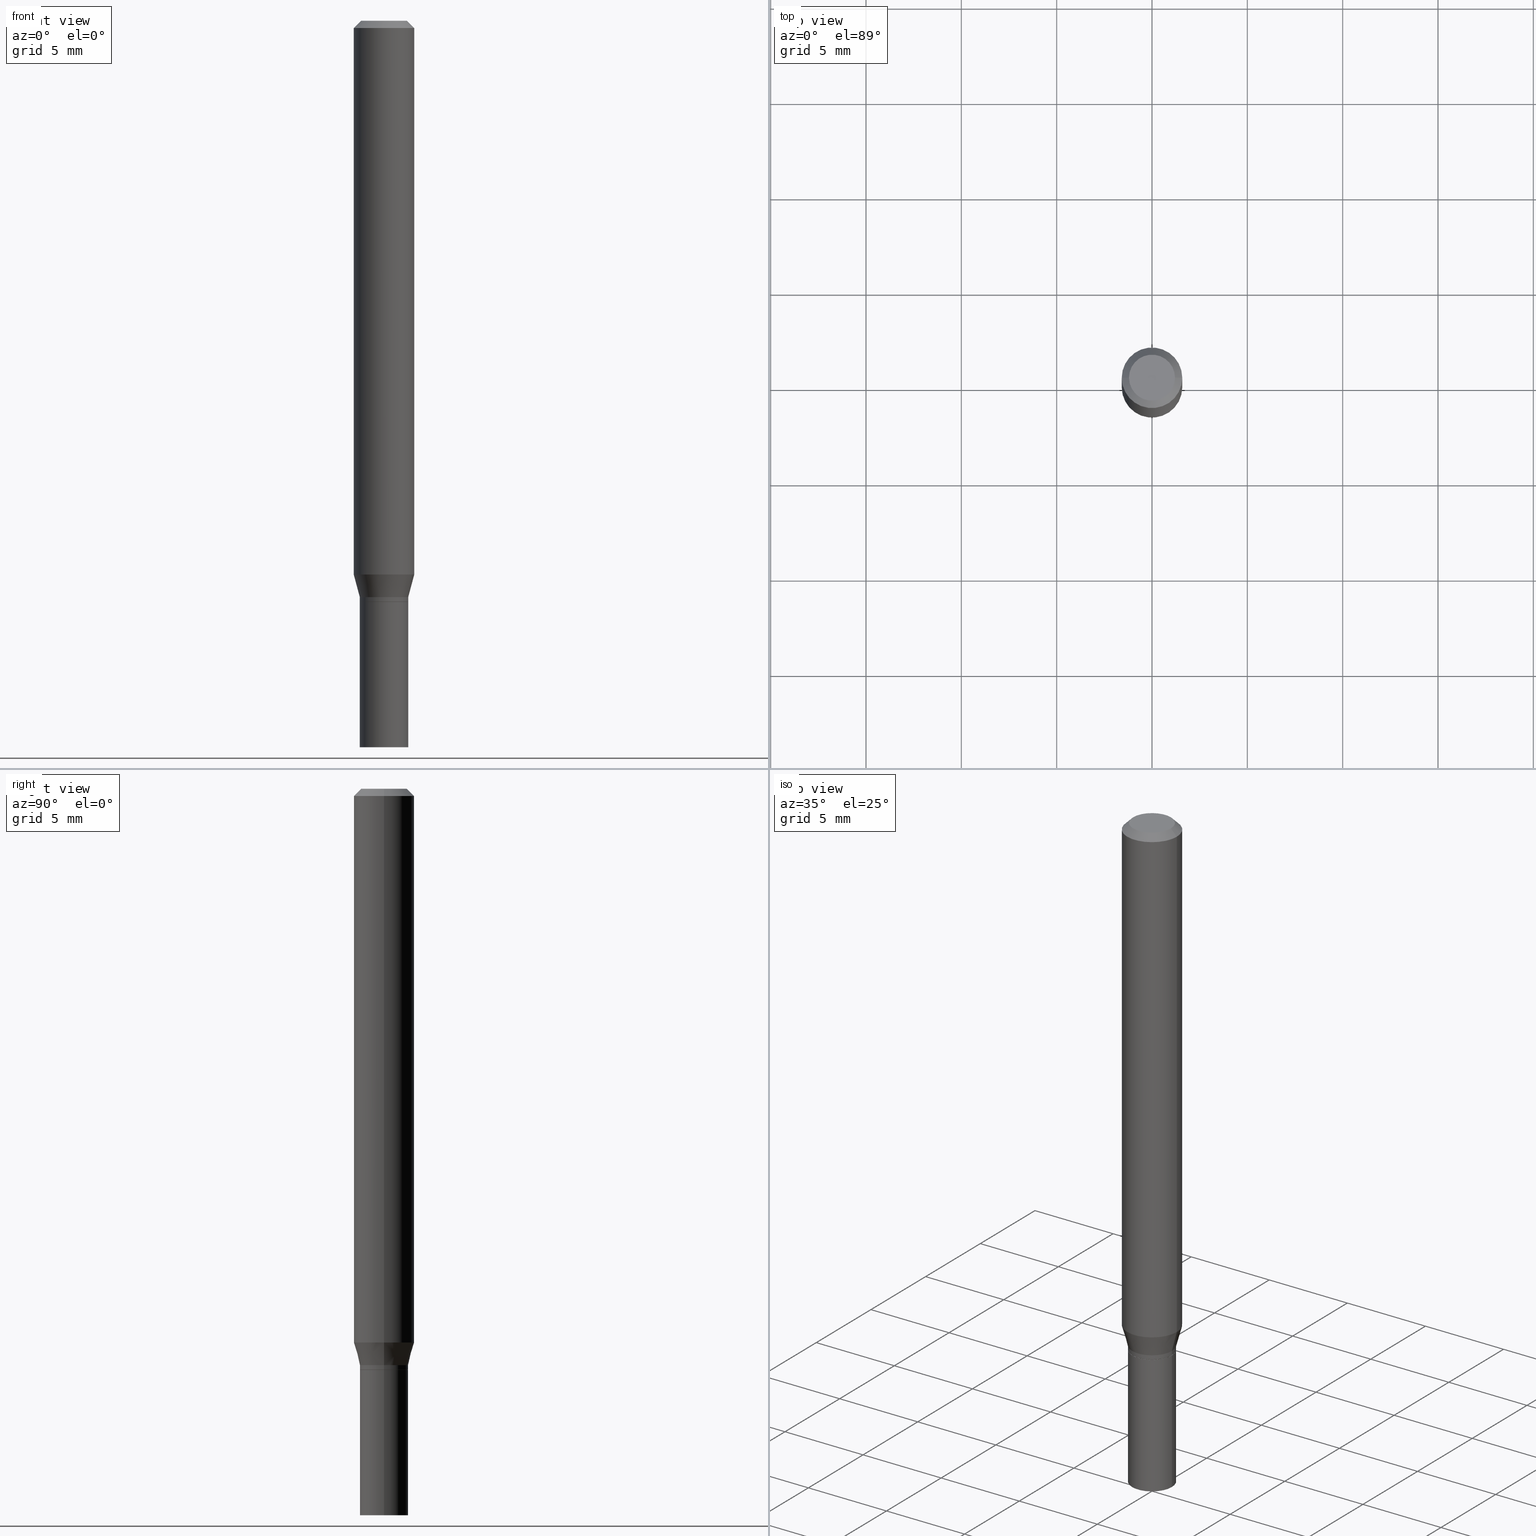
[diagram: canonical four-view strip — front | top / right | iso, engineering-drawing reading convention]
A machine part, canonical four-view strip (front | top / right | iso — engineering-drawing reading convention). The complete STEP part file that produces these views, byte-faithful:
ISO-10303-21;
HEADER;
FILE_DESCRIPTION (( 'STEP AP203' ),
    '1' );
FILE_NAME ('00508.STEP',
    '2024-03-19T21:26:42',
    ( '' ),
    ( '' ),
    'SwSTEP 2.0',
    'SolidWorks 2023',
    '' );
FILE_SCHEMA (( 'CONFIG_CONTROL_DESIGN' ));
ENDSEC;

DATA;
#1 = ORIENTED_EDGE ( 'NONE', *, *, #311, .T. ) ;
#2 = CIRCLE ( 'NONE', #382, 0.04950000000000000233 ) ;
#3 = VECTOR ( 'NONE', #71, 39.37007874015748854 ) ;
#4 = PRODUCT_DEFINITION ( 'UNKNOWN', '', #101, #205 ) ;
#5 = LINE ( 'NONE', #403, #201 ) ;
#6 = DIRECTION ( 'NONE',  ( -2.445468806185136597E-29, 3.491481338843145583E-15, 1.000000000000000000 ) ) ;
#7 = FACE_OUTER_BOUND ( 'NONE', #132, .T. ) ;
#8 = CARTESIAN_POINT ( 'NONE',  ( -2.107530995056288845E-45, 3.008995707351289501E-31, 8.618106228653878303E-17 ) ) ;
#9 = DIRECTION ( 'NONE',  ( -2.445468806185136597E-29, 3.491481338843145583E-15, 1.000000000000000000 ) ) ;
#10 = CIRCLE ( 'NONE', #130, 0.05000000000000006523 ) ;
#11 = ORIENTED_EDGE ( 'NONE', *, *, #244, .T. ) ;
#12 = COORDINATED_UNIVERSAL_TIME_OFFSET ( 5, 0, .BEHIND. ) ;
#13 = EDGE_CURVE ( 'NONE', #392, #26, #98, .T. ) ;
#14 = CONICAL_SURFACE ( 'NONE', #443, 0.05000000000000006523, 0.2617993877991506846 ) ;
#15 = PERSON_AND_ORGANIZATION_ROLE ( 'creator' ) ;
#16 = ORIENTED_EDGE ( 'NONE', *, *, #227, .F. ) ;
#17 = CC_DESIGN_PERSON_AND_ORGANIZATION_ASSIGNMENT ( #243, #283, ( #101 ) ) ;
#18 = EDGE_CURVE ( 'NONE', #168, #96, #407, .T. ) ;
#19 = CIRCLE ( 'NONE', #240, 0.05000000000000006523 ) ;
#20 = ORIENTED_EDGE ( 'NONE', *, *, #326, .F. ) ;
#21 = ORIENTED_EDGE ( 'NONE', *, *, #288, .F. ) ;
#22 =( NAMED_UNIT ( * ) SI_UNIT ( $, .STERADIAN. ) SOLID_ANGLE_UNIT ( ) );
#23 = ORIENTED_EDGE ( 'NONE', *, *, #92, .F. ) ;
#24 = CARTESIAN_POINT ( 'NONE',  ( 0.000000000000000000, 0.000000000000000000, 0.000000000000000000 ) ) ;
#25 = DIRECTION ( 'NONE',  ( -0.7071067811865656694, 7.493145998870420424E-15, 0.7071067811865294761 ) ) ;
#26 = VERTEX_POINT ( 'NONE', #230 ) ;
#27 = DIRECTION ( 'NONE',  ( -1.000000000000000000, 6.982962677686265922E-15, -4.876176775795935793E-29 ) ) ;
#28 = DIRECTION ( 'NONE',  ( 1.000000000000000000, -6.982962677686266711E-15, 4.876176775795935793E-29 ) ) ;
#29 = CARTESIAN_POINT ( 'NONE',  ( -0.05000000000000006523, 3.552713678800505564E-16, -2.459467545127455764E-30 ) ) ;
#30 = CARTESIAN_POINT ( 'NONE',  ( 2.910107879360313156E-29, -4.154862793223344154E-15, -1.190000000000000169 ) ) ;
#31 = DIRECTION ( 'NONE',  ( 1.000000000000000000, -6.982962677686265133E-15, 0.000000000000000000 ) ) ;
#32 = DIRECTION ( 'NONE',  ( 1.000000000000000000, -6.982962677686270655E-15, 0.000000000000000000 ) ) ;
#33 = EDGE_CURVE ( 'NONE', #134, #355, #357, .T. ) ;
#34 = DIRECTION ( 'NONE',  ( -2.445468806185136597E-29, 3.491481338843145583E-15, 1.000000000000000000 ) ) ;
#35 = CARTESIAN_POINT ( 'NONE',  ( -0.05000000000000000278, -4.358228439558196976E-15, -1.500000000000000222 ) ) ;
#36 = CARTESIAN_POINT ( 'NONE',  ( -0.05000000000000000278, 3.552713678800501127E-16, -2.459467545127453311E-30 ) ) ;
#37 = CIRCLE ( 'NONE', #352, 0.05000000000000006523 ) ;
#38 = PERSON_AND_ORGANIZATION ( #138, #274 ) ;
#39 = AXIS2_PLACEMENT_3D ( 'NONE', #185, #34, #214 ) ;
#40 = DIRECTION ( 'NONE',  ( -2.445468806185136597E-29, 3.491481338843145583E-15, 1.000000000000000000 ) ) ;
#41 = ORIENTED_EDGE ( 'NONE', *, *, #275, .F. ) ;
#42 = ORIENTED_EDGE ( 'NONE', *, *, #391, .F. ) ;
#43 = PRODUCT_DEFINITION_SHAPE ( 'NONE', 'NONE',  #4 ) ;
#44 = EDGE_CURVE ( 'NONE', #355, #107, #313, .T. ) ;
#45 = DIRECTION ( 'NONE',  ( -2.445468806185136877E-29, 3.491481338843145188E-15, 1.000000000000000000 ) ) ;
#46 = EDGE_LOOP ( 'NONE', ( #213, #300 ) ) ;
#47 = AXIS2_PLACEMENT_3D ( 'NONE', #439, #299, #76 ) ;
#48 = AXIS2_PLACEMENT_3D ( 'NONE', #248, #434, #27 ) ;
#49 = FACE_OUTER_BOUND ( 'NONE', #249, .T. ) ;
#50 = SECURITY_CLASSIFICATION_LEVEL ( 'unclassified' ) ;
#51 = EDGE_CURVE ( 'NONE', #140, #356, #397, .T. ) ;
#52 = AXIS2_PLACEMENT_3D ( 'NONE', #464, #344, #32 ) ;
#53 = VECTOR ( 'NONE', #143, 39.37007874015748143 ) ;
#54 = PERSON_AND_ORGANIZATION ( #138, #274 ) ;
#55 = MANIFOLD_SOLID_BREP ( 'Body-Move/Copy2[2]', #78 ) ;
#56 = ADVANCED_FACE ( 'NONE', ( #220 ), #432, .T. ) ;
#57 = EDGE_LOOP ( 'NONE', ( #297, #389, #223, #390 ) ) ;
#58 = EDGE_LOOP ( 'NONE', ( #387, #11, #61, #42 ) ) ;
#59 = AXIS2_PLACEMENT_3D ( 'NONE', #257, #259, #110 ) ;
#60 = ORIENTED_EDGE ( 'NONE', *, *, #18, .T. ) ;
#61 = ORIENTED_EDGE ( 'NONE', *, *, #51, .T. ) ;
#62 = CC_DESIGN_PERSON_AND_ORGANIZATION_ASSIGNMENT ( #415, #89, ( #101 ) ) ;
#63 = ADVANCED_FACE ( 'NONE', ( #191 ), #378, .T. ) ;
#64 = FACE_OUTER_BOUND ( 'NONE', #402, .T. ) ;
#65 = ORIENTED_EDGE ( 'NONE', *, *, #188, .F. ) ;
#66 = PRODUCT ( '00508', '00508', '', ( #239 ) ) ;
#67 = CARTESIAN_POINT ( 'NONE',  ( -0.04950000000000000233, -3.838058952410526294E-15, -1.200000000000000178 ) ) ;
#68 = DIRECTION ( 'NONE',  ( -2.445468806185136877E-29, 3.491481338843145188E-15, 1.000000000000000000 ) ) ;
#69 = VECTOR ( 'NONE', #367, 39.37007874015748143 ) ;
#70 = DIRECTION ( 'NONE',  ( 1.000000000000000000, -6.982962677686264344E-15, 0.000000000000000000 ) ) ;
#71 = DIRECTION ( 'NONE',  ( -0.7071067811865454633, 2.468850131082235761E-15, -0.7071067811865493491 ) ) ;
#72 = CARTESIAN_POINT ( 'NONE',  ( 0.05000000000000000278, -3.491481338843133848E-16, 2.438088387897968247E-30 ) ) ;
#73 = CARTESIAN_POINT ( 'NONE',  ( 0.04950000000000000233, -4.535434259157245343E-15, -1.200000000000000178 ) ) ;
#74 = CARTESIAN_POINT ( 'NONE',  ( 2.910107879360313156E-29, -4.154862793223344154E-15, -1.190000000000000169 ) ) ;
#75 = CARTESIAN_POINT ( 'NONE',  ( -0.04950000000000000233, -3.835409725236414304E-15, -1.200000000000000178 ) ) ;
#76 = DIRECTION ( 'NONE',  ( 1.000000000000000000, -6.982962677686265922E-15, 4.876176775795935793E-29 ) ) ;
#77 = ORIENTED_EDGE ( 'NONE', *, *, #33, .T. ) ;
#78 = CLOSED_SHELL ( 'NONE', ( #56, #301, #133, #256, #366, #119, #63, #183, #317, #211, #417, #409 ) ) ;
#79 = AXIS2_PLACEMENT_3D ( 'NONE', #272, #411, #277 ) ;
#80 = LOCAL_TIME ( 17, 26, 42.00000000000000000, #447 ) ;
#81 = EDGE_CURVE ( 'NONE', #392, #310, #233, .T. ) ;
#82 = DIRECTION ( 'NONE',  ( -2.445468806185136877E-29, 3.491481338843145188E-15, 1.000000000000000000 ) ) ;
#83 = DIRECTION ( 'NONE',  ( 1.000000000000000000, -6.982962677686264344E-15, 0.000000000000000000 ) ) ;
#84 = CARTESIAN_POINT ( 'NONE',  ( -2.107530995056288845E-45, 3.008995707351289501E-31, 8.618106228653878303E-17 ) ) ;
#85 = ORIENTED_EDGE ( 'NONE', *, *, #51, .F. ) ;
#86 = APPROVAL_DATE_TIME ( #280, #287 ) ;
#87 = CIRCLE ( 'NONE', #448, 0.06250000000000000000 ) ;
#88 = CIRCLE ( 'NONE', #286, 0.05000000000000000278 ) ;
#89 = PERSON_AND_ORGANIZATION_ROLE ( 'design_supplier' ) ;
#90 = DATE_TIME_ROLE ( 'creation_date' ) ;
#91 = COORDINATED_UNIVERSAL_TIME_OFFSET ( 5, 0, .BEHIND. ) ;
#92 = EDGE_CURVE ( 'NONE', #100, #363, #2, .T. ) ;
#93 = CLOSED_SHELL ( 'NONE', ( #458, #276, #200, #169 ) ) ;
#94 = LOCAL_TIME ( 17, 26, 42.00000000000000000, #171 ) ;
#95 = PERSON_AND_ORGANIZATION ( #138, #274 ) ;
#96 = VERTEX_POINT ( 'NONE', #268 ) ;
#97 = VERTEX_POINT ( 'NONE', #404 ) ;
#98 = CIRCLE ( 'NONE', #375, 0.05000000000000006523 ) ;
#99 = AXIS2_PLACEMENT_3D ( 'NONE', #142, #228, #261 ) ;
#100 = VERTEX_POINT ( 'NONE', #75 ) ;
#101 = PRODUCT_DEFINITION_FORMATION_WITH_SPECIFIED_SOURCE ( 'ANY', '', #66, .NOT_KNOWN. ) ;
#102 = EDGE_CURVE ( 'NONE', #134, #97, #373, .T. ) ;
#103 = APPLICATION_PROTOCOL_DEFINITION ( 'international standard', 'config_control_design', 1994, #245 ) ;
#104 = DIRECTION ( 'NONE',  ( -2.445468806185136597E-29, 3.491481338843145583E-15, 1.000000000000000000 ) ) ;
#105 = ORIENTED_EDGE ( 'NONE', *, *, #337, .T. ) ;
#106 = DIRECTION ( 'NONE',  ( 1.000000000000000000, -6.982962677686266711E-15, 0.000000000000000000 ) ) ;
#107 = VERTEX_POINT ( 'NONE', #194 ) ;
#108 = DIRECTION ( 'NONE',  ( 1.000000000000000000, -6.982962677686265133E-15, 0.000000000000000000 ) ) ;
#109 = EDGE_CURVE ( 'NONE', #395, #456, #281, .T. ) ;
#110 = DIRECTION ( 'NONE',  ( 1.000000000000000000, -6.982962677686264344E-15, 0.000000000000000000 ) ) ;
#111 = EDGE_LOOP ( 'NONE', ( #349, #60, #454, #85 ) ) ;
#112 = AXIS2_PLACEMENT_3D ( 'NONE', #399, #116, #70 ) ;
#113 = DIRECTION ( 'NONE',  ( 0.2588190451025219607, 1.565188264969617432E-15, 0.9659258262890679791 ) ) ;
#114 = LINE ( 'NONE', #202, #318 ) ;
#115 = DIRECTION ( 'NONE',  ( 1.000000000000000000, -6.982962677686264344E-15, 0.000000000000000000 ) ) ;
#116 = DIRECTION ( 'NONE',  ( -2.445468806185136597E-29, 3.491481338843145583E-15, 1.000000000000000000 ) ) ;
#117 = CARTESIAN_POINT ( 'NONE',  ( 3.668203209277705088E-31, -5.237222008264718399E-17, -0.01499999999999999944 ) ) ;
#118 = DIRECTION ( 'NONE',  ( 1.000000000000000000, -6.982962677686265133E-15, 0.000000000000000000 ) ) ;
#119 = ADVANCED_FACE ( 'NONE', ( #335 ), #166, .T. ) ;
#120 = FACE_OUTER_BOUND ( 'NONE', #136, .T. ) ;
#121 = ORIENTED_EDGE ( 'NONE', *, *, #129, .T. ) ;
#122 = AXIS2_PLACEMENT_3D ( 'NONE', #84, #412, #444 ) ;
#123 = CARTESIAN_POINT ( 'NONE',  ( 0.05000000000000000278, -5.586370142149032301E-15, -1.500000000000000222 ) ) ;
#124 = DATE_AND_TIME ( #204, #94 ) ;
#125 = CC_DESIGN_APPROVAL ( #408, ( #330 ) ) ;
#126 = DATE_AND_TIME ( #316, #383 ) ;
#127 = PLANE ( 'NONE',  #48 ) ;
#128 = PERSON_AND_ORGANIZATION ( #138, #274 ) ;
#129 = EDGE_CURVE ( 'NONE', #355, #134, #246, .T. ) ;
#130 = AXIS2_PLACEMENT_3D ( 'NONE', #74, #104, #31 ) ;
#131 = ORIENTED_EDGE ( 'NONE', *, *, #129, .F. ) ;
#132 = EDGE_LOOP ( 'NONE', ( #121, #184, #16, #323 ) ) ;
#133 = ADVANCED_FACE ( 'NONE', ( #120 ), #285, .T. ) ;
#134 = VERTEX_POINT ( 'NONE', #235 ) ;
#135 = CONICAL_SURFACE ( 'NONE', #160, 0.04950000000000000233, 0.7853981633974739252 ) ;
#136 = EDGE_LOOP ( 'NONE', ( #360, #253, #174, #41 ) ) ;
#137 = FACE_OUTER_BOUND ( 'NONE', #111, .T. ) ;
#138 = PERSON ( 'UNSPECIFIED', 'UNSPECIFIED', 'UNSPECIFIED', ('UNSPECIFIED'), ('UNSPECIFIED'), ('UNSPECIFIED') ) ;
#139 = LINE ( 'NONE', #67, #343 ) ;
#140 = VERTEX_POINT ( 'NONE', #123 ) ;
#141 = EDGE_CURVE ( 'NONE', #456, #395, #328, .T. ) ;
#142 = CARTESIAN_POINT ( 'NONE',  ( 3.668203209277704895E-29, -5.237222008264718177E-15, -1.500000000000000222 ) ) ;
#143 = DIRECTION ( 'NONE',  ( -0.2588190451025219607, 5.211531920934553408E-15, 0.9659258262890679791 ) ) ;
#144 = CARTESIAN_POINT ( 'NONE',  ( 2.910107879360313156E-29, -4.154862793223344154E-15, -1.190000000000000169 ) ) ;
#145 =( NAMED_UNIT ( * ) PLANE_ANGLE_UNIT ( ) SI_UNIT ( $, .RADIAN. ) );
#146 = DIRECTION ( 'NONE',  ( -2.445468806185136877E-29, 3.491481338843145188E-15, 1.000000000000000000 ) ) ;
#147 = DIRECTION ( 'NONE',  ( 1.000000000000000000, -6.982962677686266711E-15, 4.876176775795935793E-29 ) ) ;
#148 = AXIS2_PLACEMENT_3D ( 'NONE', #406, #362, #307 ) ;
#149 = LOCAL_TIME ( 17, 26, 42.00000000000000000, #241 ) ;
#150 = DIRECTION ( 'NONE',  ( 0.7071067811865656694, -2.468850131082446387E-15, 0.7071067811865294761 ) ) ;
#151 = CYLINDRICAL_SURFACE ( 'NONE', #148, 0.05000000000000000278 ) ;
#152 = ORIENTED_EDGE ( 'NONE', *, *, #141, .T. ) ;
#153 = DIRECTION ( 'NONE',  ( -2.445468806185136597E-29, 3.491481338843145583E-15, 1.000000000000000000 ) ) ;
#154 = APPROVAL ( #354, 'UNSPECIFIED' ) ;
#155 = EDGE_CURVE ( 'NONE', #310, #291, #10, .T. ) ;
#156 = CARTESIAN_POINT ( 'NONE',  ( 2.796025206447717260E-29, -3.991982971345330579E-15, -1.143349364905389631 ) ) ;
#157 = DIRECTION ( 'NONE',  ( -2.445468806185136597E-29, 3.491481338843145583E-15, 1.000000000000000000 ) ) ;
#158 = DIRECTION ( 'NONE',  ( 1.000000000000000000, -6.982962677686266711E-15, 4.876176775795935232E-29 ) ) ;
#159 = VECTOR ( 'NONE', #45, 39.37007874015748143 ) ;
#160 = AXIS2_PLACEMENT_3D ( 'NONE', #379, #157, #83 ) ;
#161 = CC_DESIGN_DATE_AND_TIME_ASSIGNMENT ( #284, #90, ( #4 ) ) ;
#162 = EDGE_CURVE ( 'NONE', #363, #100, #398, .T. ) ;
#163 = DIRECTION ( 'NONE',  ( 0.7071067811865454633, -7.319954787623246579E-15, -0.7071067811865493491 ) ) ;
#164 = APPROVAL_DATE_TIME ( #124, #154 ) ;
#165 = PERSON_AND_ORGANIZATION ( #138, #274 ) ;
#166 = CONICAL_SURFACE ( 'NONE', #419, 0.05000000000000006523, 0.2617993877991506846 ) ;
#167 = CC_DESIGN_APPROVAL ( #154, ( #4 ) ) ;
#168 = VERTEX_POINT ( 'NONE', #35 ) ;
#169 = ADVANCED_FACE ( 'NONE', ( #372 ), #216, .F. ) ;
#170 = EDGE_CURVE ( 'NONE', #26, #291, #5, .T. ) ;
#171 = COORDINATED_UNIVERSAL_TIME_OFFSET ( 5, 0, .BEHIND. ) ;
#172 = APPROVAL_ROLE ( '' ) ;
#173 = EDGE_LOOP ( 'NONE', ( #65, #231, #199, #426 ) ) ;
#174 = ORIENTED_EDGE ( 'NONE', *, *, #227, .T. ) ;
#175 = EDGE_CURVE ( 'NONE', #291, #310, #19, .T. ) ;
#176 = ORIENTED_EDGE ( 'NONE', *, *, #267, .T. ) ;
#177 = DIRECTION ( 'NONE',  ( -2.445468806185136597E-29, 3.491481338843145583E-15, 1.000000000000000000 ) ) ;
#178 = ORIENTED_EDGE ( 'NONE', *, *, #162, .T. ) ;
#179 = FACE_OUTER_BOUND ( 'NONE', #57, .T. ) ;
#180 = PLANE ( 'NONE',  #47 ) ;
#181 = VECTOR ( 'NONE', #82, 39.37007874015748143 ) ;
#182 = VECTOR ( 'NONE', #150, 39.37007874015748143 ) ;
#183 = ADVANCED_FACE ( 'NONE', ( #196 ), #433, .T. ) ;
#184 = ORIENTED_EDGE ( 'NONE', *, *, #102, .T. ) ;
#185 = CARTESIAN_POINT ( 'NONE',  ( 2.934562567422164701E-29, -4.189777606611775804E-15, -1.200000000000000178 ) ) ;
#186 = LINE ( 'NONE', #463, #53 ) ;
#187 = CARTESIAN_POINT ( 'NONE',  ( 0.06250000000000000000, -4.364351673553916694E-16, 3.047610484872459871E-30 ) ) ;
#188 = EDGE_CURVE ( 'NONE', #100, #392, #139, .T. ) ;
#189 = FACE_OUTER_BOUND ( 'NONE', #173, .T. ) ;
#190 = DIRECTION ( 'NONE',  ( 1.000000000000000000, -6.982962677686265133E-15, 0.000000000000000000 ) ) ;
#191 = FACE_OUTER_BOUND ( 'NONE', #453, .T. ) ;
#192 =( LENGTH_UNIT ( ) NAMED_UNIT ( * ) SI_UNIT ( $, .METRE. ) );
#193 = CARTESIAN_POINT ( 'NONE',  ( 2.910107879360313156E-29, -4.154862793223344154E-15, -1.190000000000000169 ) ) ;
#194 = CARTESIAN_POINT ( 'NONE',  ( 0.06250000000000000000, -4.888073874380388472E-16, -0.01499999999999999944 ) ) ;
#195 = AXIS2_PLACEMENT_3D ( 'NONE', #117, #153, #334 ) ;
#196 = FACE_OUTER_BOUND ( 'NONE', #251, .T. ) ;
#197 = CARTESIAN_POINT ( 'NONE',  ( 2.934562567422164701E-29, -4.189777606611775804E-15, -1.200000000000000178 ) ) ;
#198 = DIRECTION ( 'NONE',  ( -2.445468806185136597E-29, 3.491481338843145583E-15, 1.000000000000000000 ) ) ;
#199 = ORIENTED_EDGE ( 'NONE', *, *, #326, .T. ) ;
#200 = ADVANCED_FACE ( 'NONE', ( #394 ), #151, .T. ) ;
#201 = VECTOR ( 'NONE', #146, 39.37007874015748143 ) ;
#202 = CARTESIAN_POINT ( 'NONE',  ( 0.06250000000000000000, -4.811533449433679005E-16, -0.01499999999999999944 ) ) ;
#203 = CALENDAR_DATE ( 2024, 19, 3 ) ;
#204 = CALENDAR_DATE ( 2024, 19, 3 ) ;
#205 = DESIGN_CONTEXT ( 'detailed design', #238, 'design' ) ;
#206 = AXIS2_PLACEMENT_3D ( 'NONE', #156, #271, #309 ) ;
#207 = APPROVAL_PERSON_ORGANIZATION ( #38, #287, #172 ) ;
#208 = CALENDAR_DATE ( 2024, 19, 3 ) ;
#209 = ORIENTED_EDGE ( 'NONE', *, *, #102, .F. ) ;
#210 = ORIENTED_EDGE ( 'NONE', *, *, #337, .F. ) ;
#211 = ADVANCED_FACE ( 'NONE', ( #64 ), #180, .F. ) ;
#212 = VECTOR ( 'NONE', #437, 39.37007874015748143 ) ;
#213 = ORIENTED_EDGE ( 'NONE', *, *, #414, .F. ) ;
#214 = DIRECTION ( 'NONE',  ( 1.000000000000000000, -6.982962677686274599E-15, 0.000000000000000000 ) ) ;
#215 = EDGE_CURVE ( 'NONE', #97, #107, #322, .T. ) ;
#216 = PLANE ( 'NONE',  #263 ) ;
#217 = ORIENTED_EDGE ( 'NONE', *, *, #109, .T. ) ;
#218 = LINE ( 'NONE', #269, #460 ) ;
#219 = DIRECTION ( 'NONE',  ( 1.000000000000000000, -6.982962677686274599E-15, 0.000000000000000000 ) ) ;
#220 = FACE_OUTER_BOUND ( 'NONE', #289, .T. ) ;
#221 = CARTESIAN_POINT ( 'NONE',  ( -0.05000000000000006523, -3.832760498062303103E-15, -1.199500000000000233 ) ) ;
#222 = CARTESIAN_POINT ( 'NONE',  ( 3.576687321579069994E-29, -5.368277968210015545E-15, -1.500000000000000222 ) ) ;
#223 = ORIENTED_EDGE ( 'NONE', *, *, #170, .T. ) ;
#224 = CARTESIAN_POINT ( 'NONE',  ( 3.668203209277705088E-31, -5.237222008264718399E-17, -0.01499999999999999944 ) ) ;
#225 = MANIFOLD_SOLID_BREP ( 'Body-Move/Copy2[1]', #93 ) ;
#226 = CARTESIAN_POINT ( 'NONE',  ( 2.933339833019071899E-29, -4.188031865942353511E-15, -1.199500000000000233 ) ) ;
#227 = EDGE_CURVE ( 'NONE', #107, #97, #87, .T. ) ;
#228 = DIRECTION ( 'NONE',  ( -2.445468806185136597E-29, 3.491481338843145583E-15, 1.000000000000000000 ) ) ;
#229 = DIRECTION ( 'NONE',  ( -2.445468806185136597E-29, 3.491481338843145583E-15, 1.000000000000000000 ) ) ;
#230 = CARTESIAN_POINT ( 'NONE',  ( 0.05000000000000006523, -4.537179999826667636E-15, -1.199500000000000233 ) ) ;
#231 = ORIENTED_EDGE ( 'NONE', *, *, #92, .T. ) ;
#232 = APPROVAL_PERSON_ORGANIZATION ( #54, #408, #416 ) ;
#233 = LINE ( 'NONE', #29, #181 ) ;
#234 = ADVANCED_BREP_SHAPE_REPRESENTATION ( '00508', ( #225, #55, #282 ), #294 ) ;
#235 = CARTESIAN_POINT ( 'NONE',  ( -0.06250000000000000000, -3.547893761495267568E-15, -1.143349364905389631 ) ) ;
#236 = EDGE_LOOP ( 'NONE', ( #1, #359 ) ) ;
#237 = DIMENSIONAL_EXPONENTS ( 1.000000000000000000, 0.000000000000000000, 0.000000000000000000, 0.000000000000000000, 0.000000000000000000, 0.000000000000000000, 0.000000000000000000 ) ;
#238 = APPLICATION_CONTEXT ( 'configuration controlled 3d designs of mechanical parts and assemblies' ) ;
#239 = MECHANICAL_CONTEXT ( 'NONE', #245, 'mechanical' ) ;
#240 = AXIS2_PLACEMENT_3D ( 'NONE', #193, #40, #190 ) ;
#241 = COORDINATED_UNIVERSAL_TIME_OFFSET ( 5, 0, .BEHIND. ) ;
#242 = CARTESIAN_POINT ( 'NONE',  ( 0.05000000000000006523, -4.504010927107657490E-15, -1.190000000000000169 ) ) ;
#243 = PERSON_AND_ORGANIZATION ( #138, #274 ) ;
#244 = EDGE_CURVE ( 'NONE', #168, #140, #423, .T. ) ;
#245 = APPLICATION_CONTEXT ( 'configuration controlled 3d designs of mechanical parts and assemblies' ) ;
#246 = CIRCLE ( 'NONE', #206, 0.06250000000000000000 ) ;
#247 = CONICAL_SURFACE ( 'NONE', #112, 0.04950000000000000233, 0.7853981633974739252 ) ;
#248 = CARTESIAN_POINT ( 'NONE',  ( 3.316907271900976096E-16, 0.04749999999999999362, -1.227548324517800049E-16 ) ) ;
#249 = EDGE_LOOP ( 'NONE', ( #178, #420, #421, #20 ) ) ;
#250 = EDGE_CURVE ( 'NONE', #26, #392, #37, .T. ) ;
#251 = EDGE_LOOP ( 'NONE', ( #21, #324, #327, #459 ) ) ;
#252 = DIRECTION ( 'NONE',  ( -2.445468806185136597E-29, 3.491481338843145583E-15, 1.000000000000000000 ) ) ;
#253 = ORIENTED_EDGE ( 'NONE', *, *, #288, .T. ) ;
#254 = AXIS2_PLACEMENT_3D ( 'NONE', #331, #376, #219 ) ;
#255 = ORIENTED_EDGE ( 'NONE', *, *, #162, .F. ) ;
#256 = ADVANCED_FACE ( 'NONE', ( #7 ), #425, .T. ) ;
#257 = CARTESIAN_POINT ( 'NONE',  ( 2.934562567422164701E-29, -4.189777606611775804E-15, -1.200000000000000178 ) ) ;
#258 = ORIENTED_EDGE ( 'NONE', *, *, #44, .T. ) ;
#259 = DIRECTION ( 'NONE',  ( -2.445468806185136597E-29, 3.491481338843145583E-15, 1.000000000000000000 ) ) ;
#260 = DIRECTION ( 'NONE',  ( -2.445468806185136597E-29, 3.491481338843145583E-15, 1.000000000000000000 ) ) ;
#261 = DIRECTION ( 'NONE',  ( 1.000000000000000000, -6.982962677686274599E-15, 0.000000000000000000 ) ) ;
#262 = CARTESIAN_POINT ( 'NONE',  ( -0.06250000000000000000, 3.840629472727444916E-16, -0.01499999999999999944 ) ) ;
#263 = AXIS2_PLACEMENT_3D ( 'NONE', #339, #270, #396 ) ;
#264 = ORIENTED_EDGE ( 'NONE', *, *, #81, .T. ) ;
#265 = CARTESIAN_POINT ( 'NONE',  ( 0.000000000000000000, 0.000000000000000000, 0.000000000000000000 ) ) ;
#266 = PLANE ( 'NONE',  #304 ) ;
#267 = EDGE_CURVE ( 'NONE', #310, #134, #186, .T. ) ;
#268 = CARTESIAN_POINT ( 'NONE',  ( -0.05000000000000000278, -4.358228439558196976E-15, -1.200000000000000178 ) ) ;
#269 = CARTESIAN_POINT ( 'NONE',  ( 0.05000000000000006523, -4.504010927107657490E-15, -1.190000000000000169 ) ) ;
#270 = DIRECTION ( 'NONE',  ( 2.438088387897960049E-29, -3.491481338843145188E-15, -1.000000000000000000 ) ) ;
#271 = DIRECTION ( 'NONE',  ( -2.445468806185136597E-29, 3.491481338843145583E-15, 1.000000000000000000 ) ) ;
#272 = CARTESIAN_POINT ( 'NONE',  ( 3.668203209277705088E-31, -5.237222008264718399E-17, -0.01499999999999999944 ) ) ;
#273 = EDGE_LOOP ( 'NONE', ( #332, #308, #105, #462 ) ) ;
#274 = ORGANIZATION ( 'UNSPECIFIED', 'UNSPECIFIED', '' ) ;
#275 = EDGE_CURVE ( 'NONE', #456, #97, #431, .T. ) ;
#276 = ADVANCED_FACE ( 'NONE', ( #466 ), #266, .F. ) ;
#277 = DIRECTION ( 'NONE',  ( -1.000000000000000000, 6.982962677686266711E-15, 0.000000000000000000 ) ) ;
#278 = UNCERTAINTY_MEASURE_WITH_UNIT (LENGTH_MEASURE( 1.000000000000000082E-05 ), #457, 'distance_accuracy_value', 'NONE');
#279 = DATE_TIME_ROLE ( 'classification_date' ) ;
#280 = DATE_AND_TIME ( #351, #314 ) ;
#281 = CIRCLE ( 'NONE', #442, 0.04749999999999999362 ) ;
#282 = AXIS2_PLACEMENT_3D ( 'NONE', #24, #329, #418 ) ;
#283 = PERSON_AND_ORGANIZATION_ROLE ( 'creator' ) ;
#284 = DATE_AND_TIME ( #203, #80 ) ;
#285 = CONICAL_SURFACE ( 'NONE', #79, 0.06250000000000000000, 0.7853981633974456145 ) ;
#286 = AXIS2_PLACEMENT_3D ( 'NONE', #388, #252, #455 ) ;
#287 = APPROVAL ( #385, 'UNSPECIFIED' ) ;
#288 = EDGE_CURVE ( 'NONE', #395, #107, #114, .T. ) ;
#289 = EDGE_LOOP ( 'NONE', ( #321, #264, #292, #381 ) ) ;
#290 = CARTESIAN_POINT ( 'NONE',  ( -0.05000000000000006523, -3.673742593419279671E-15, -1.190000000000000169 ) ) ;
#291 = VERTEX_POINT ( 'NONE', #242 ) ;
#292 = ORIENTED_EDGE ( 'NONE', *, *, #175, .F. ) ;
#293 = VECTOR ( 'NONE', #68, 39.37007874015748143 ) ;
#294 =( GEOMETRIC_REPRESENTATION_CONTEXT ( 3 ) GLOBAL_UNCERTAINTY_ASSIGNED_CONTEXT ( ( #278 ) ) GLOBAL_UNIT_ASSIGNED_CONTEXT ( ( #457, #145, #22 ) ) REPRESENTATION_CONTEXT ( 'NONE', 'WORKASPACE' ) );
#295 = EDGE_LOOP ( 'NONE', ( #370, #176, #131, #210 ) ) ;
#296 = CARTESIAN_POINT ( 'NONE',  ( 3.668203209277705088E-31, -5.237222008264718399E-17, -0.01499999999999999944 ) ) ;
#297 = ORIENTED_EDGE ( 'NONE', *, *, #81, .F. ) ;
#298 = CARTESIAN_POINT ( 'NONE',  ( 0.04950000000000000233, -4.535434259157245343E-15, -1.200000000000000178 ) ) ;
#299 = DIRECTION ( 'NONE',  ( -2.438088387897960049E-29, 3.491481338843145188E-15, 1.000000000000000000 ) ) ;
#300 = ORIENTED_EDGE ( 'NONE', *, *, #244, .F. ) ;
#301 = ADVANCED_FACE ( 'NONE', ( #49 ), #135, .T. ) ;
#302 = DIRECTION ( 'NONE',  ( 1.000000000000000000, -6.982962677686265922E-15, 4.876176775795935793E-29 ) ) ;
#303 = AXIS2_PLACEMENT_3D ( 'NONE', #224, #401, #342 ) ;
#304 = AXIS2_PLACEMENT_3D ( 'NONE', #222, #369, #302 ) ;
#305 = DIRECTION ( 'NONE',  ( -2.445468806185136597E-29, 3.491481338843145583E-15, 1.000000000000000000 ) ) ;
#306 = CARTESIAN_POINT ( 'NONE',  ( 0.04749999999999999362, -4.035134999187576651E-16, 8.618106228654135916E-17 ) ) ;
#307 = DIRECTION ( 'NONE',  ( 1.000000000000000000, -6.982962677686267499E-15, 4.876176775795936353E-29 ) ) ;
#308 = ORIENTED_EDGE ( 'NONE', *, *, #155, .T. ) ;
#309 = DIRECTION ( 'NONE',  ( 1.000000000000000000, -6.982962677686270655E-15, 0.000000000000000000 ) ) ;
#310 = VERTEX_POINT ( 'NONE', #290 ) ;
#311 = EDGE_CURVE ( 'NONE', #356, #96, #88, .T. ) ;
#312 = AXIS2_PLACEMENT_3D ( 'NONE', #380, #340, #147 ) ;
#313 = LINE ( 'NONE', #187, #69 ) ;
#314 = LOCAL_TIME ( 17, 26, 42.00000000000000000, #91 ) ;
#315 = PERSON_AND_ORGANIZATION_ROLE ( 'design_owner' ) ;
#316 = CALENDAR_DATE ( 2024, 19, 3 ) ;
#317 = ADVANCED_FACE ( 'NONE', ( #319 ), #127, .F. ) ;
#318 = VECTOR ( 'NONE', #163, 39.37007874015748854 ) ;
#319 = FACE_OUTER_BOUND ( 'NONE', #422, .T. ) ;
#320 = APPROVAL_DATE_TIME ( #384, #408 ) ;
#321 = ORIENTED_EDGE ( 'NONE', *, *, #250, .T. ) ;
#322 = CIRCLE ( 'NONE', #195, 0.06250000000000000000 ) ;
#323 = ORIENTED_EDGE ( 'NONE', *, *, #44, .F. ) ;
#324 = ORIENTED_EDGE ( 'NONE', *, *, #141, .F. ) ;
#325 = PRODUCT_RELATED_PRODUCT_CATEGORY ( 'detail', '', ( #66 ) ) ;
#326 = EDGE_CURVE ( 'NONE', #363, #26, #430, .T. ) ;
#327 = ORIENTED_EDGE ( 'NONE', *, *, #275, .T. ) ;
#328 = CIRCLE ( 'NONE', #122, 0.04749999999999999362 ) ;
#329 = DIRECTION ( 'NONE',  ( 0.000000000000000000, 0.000000000000000000, 1.000000000000000000 ) ) ;
#330 = SECURITY_CLASSIFICATION ( '', '', #50 ) ;
#331 = CARTESIAN_POINT ( 'NONE',  ( 3.668203209277704895E-29, -5.237222008264718177E-15, -1.500000000000000222 ) ) ;
#332 = ORIENTED_EDGE ( 'NONE', *, *, #267, .F. ) ;
#333 = DIRECTION ( 'NONE',  ( -2.445468806185136597E-29, 3.491481338843145583E-15, 1.000000000000000000 ) ) ;
#334 = DIRECTION ( 'NONE',  ( 1.000000000000000000, -6.982962677686266711E-15, 0.000000000000000000 ) ) ;
#335 = FACE_OUTER_BOUND ( 'NONE', #273, .T. ) ;
#336 = CC_DESIGN_PERSON_AND_ORGANIZATION_ASSIGNMENT ( #95, #15, ( #4 ) ) ;
#337 = EDGE_CURVE ( 'NONE', #291, #355, #218, .T. ) ;
#338 = DIRECTION ( 'NONE',  ( 1.000000000000000000, -6.982962677686267499E-15, 4.876176775795936353E-29 ) ) ;
#339 = CARTESIAN_POINT ( 'NONE',  ( 3.491481338843426713E-16, 0.04999999999999581168, -1.200000000000000400 ) ) ;
#340 = DIRECTION ( 'NONE',  ( -2.445468806185136597E-29, 3.491481338843145583E-15, 1.000000000000000000 ) ) ;
#341 = LENGTH_MEASURE_WITH_UNIT ( LENGTH_MEASURE( 0.02539999999999999897 ), #192 );
#342 = DIRECTION ( 'NONE',  ( -1.000000000000000000, 6.982962677686266711E-15, 0.000000000000000000 ) ) ;
#343 = VECTOR ( 'NONE', #25, 39.37007874015748143 ) ;
#344 = DIRECTION ( 'NONE',  ( -2.445468806185136597E-29, 3.491481338843145583E-15, 1.000000000000000000 ) ) ;
#345 = CARTESIAN_POINT ( 'NONE',  ( 2.933339833019071899E-29, -4.188031865942353511E-15, -1.199500000000000233 ) ) ;
#346 = CARTESIAN_POINT ( 'NONE',  ( -0.06250000000000000000, 4.440892098500626162E-16, -3.074334431409316114E-30 ) ) ;
#347 = DIRECTION ( 'NONE',  ( 1.000000000000000000, -6.982962677686267499E-15, 4.884662768193073002E-29 ) ) ;
#348 = AXIS2_PLACEMENT_3D ( 'NONE', #441, #198, #158 ) ;
#349 = ORIENTED_EDGE ( 'NONE', *, *, #414, .T. ) ;
#350 = APPROVAL_STATUS ( 'not_yet_approved' ) ;
#351 = CALENDAR_DATE ( 2024, 19, 3 ) ;
#352 = AXIS2_PLACEMENT_3D ( 'NONE', #345, #436, #461 ) ;
#353 = CC_DESIGN_SECURITY_CLASSIFICATION ( #330, ( #101 ) ) ;
#354 = APPROVAL_STATUS ( 'not_yet_approved' ) ;
#355 = VERTEX_POINT ( 'NONE', #371 ) ;
#356 = VERTEX_POINT ( 'NONE', #364 ) ;
#357 = CIRCLE ( 'NONE', #52, 0.06250000000000000000 ) ;
#358 = CIRCLE ( 'NONE', #39, 0.05000000000000000278 ) ;
#359 = ORIENTED_EDGE ( 'NONE', *, *, #391, .T. ) ;
#360 = ORIENTED_EDGE ( 'NONE', *, *, #109, .F. ) ;
#361 = DIRECTION ( 'NONE',  ( 1.000000000000000000, -6.982962677686266711E-15, 4.876176775795935232E-29 ) ) ;
#362 = DIRECTION ( 'NONE',  ( -2.445468806185136597E-29, 3.491481338843145583E-15, 1.000000000000000000 ) ) ;
#363 = VERTEX_POINT ( 'NONE', #73 ) ;
#364 = CARTESIAN_POINT ( 'NONE',  ( 0.05000000000000000278, -4.538925740496089139E-15, -1.200000000000000178 ) ) ;
#365 = DIRECTION ( 'NONE',  ( -2.445468806185136597E-29, 3.491481338843145583E-15, 1.000000000000000000 ) ) ;
#366 = ADVANCED_FACE ( 'NONE', ( #393 ), #14, .T. ) ;
#367 = DIRECTION ( 'NONE',  ( -2.445468806185136877E-29, 3.491481338843145188E-15, 1.000000000000000000 ) ) ;
#368 = DIRECTION ( 'NONE',  ( -2.445468806185136597E-29, 3.491481338843145583E-15, 1.000000000000000000 ) ) ;
#369 = DIRECTION ( 'NONE',  ( -2.438088387897960049E-29, 3.491481338843145188E-15, 1.000000000000000000 ) ) ;
#370 = ORIENTED_EDGE ( 'NONE', *, *, #175, .T. ) ;
#371 = CARTESIAN_POINT ( 'NONE',  ( 0.06250000000000000000, -4.428418138700722248E-15, -1.143349364905389631 ) ) ;
#372 = FACE_OUTER_BOUND ( 'NONE', #236, .T. ) ;
#373 = LINE ( 'NONE', #346, #159 ) ;
#374 = PERSON_AND_ORGANIZATION_ROLE ( 'classification_officer' ) ;
#375 = AXIS2_PLACEMENT_3D ( 'NONE', #226, #260, #440 ) ;
#376 = DIRECTION ( 'NONE',  ( -2.445468806185136597E-29, 3.491481338843145583E-15, 1.000000000000000000 ) ) ;
#377 = CIRCLE ( 'NONE', #99, 0.05000000000000000278 ) ;
#378 = CYLINDRICAL_SURFACE ( 'NONE', #312, 0.06250000000000000000 ) ;
#379 = CARTESIAN_POINT ( 'NONE',  ( 2.934562567422164701E-29, -4.189777606611775804E-15, -1.200000000000000178 ) ) ;
#380 = CARTESIAN_POINT ( 'NONE',  ( 0.000000000000000000, 0.000000000000000000, 0.000000000000000000 ) ) ;
#381 = ORIENTED_EDGE ( 'NONE', *, *, #170, .F. ) ;
#382 = AXIS2_PLACEMENT_3D ( 'NONE', #197, #305, #115 ) ;
#383 = LOCAL_TIME ( 17, 26, 42.00000000000000000, #12 ) ;
#384 = DATE_AND_TIME ( #208, #149 ) ;
#385 = APPROVAL_STATUS ( 'not_yet_approved' ) ;
#386 = AXIS2_PLACEMENT_3D ( 'NONE', #428, #365, #28 ) ;
#387 = ORIENTED_EDGE ( 'NONE', *, *, #18, .F. ) ;
#388 = CARTESIAN_POINT ( 'NONE',  ( 2.934562567422164701E-29, -4.189777606611775804E-15, -1.200000000000000178 ) ) ;
#389 = ORIENTED_EDGE ( 'NONE', *, *, #13, .T. ) ;
#390 = ORIENTED_EDGE ( 'NONE', *, *, #155, .F. ) ;
#391 = EDGE_CURVE ( 'NONE', #96, #356, #358, .T. ) ;
#392 = VERTEX_POINT ( 'NONE', #221 ) ;
#393 = FACE_OUTER_BOUND ( 'NONE', #295, .T. ) ;
#394 = FACE_OUTER_BOUND ( 'NONE', #58, .T. ) ;
#395 = VERTEX_POINT ( 'NONE', #306 ) ;
#396 = DIRECTION ( 'NONE',  ( -1.000000000000000000, 6.982962677686265922E-15, -4.876176775795935793E-29 ) ) ;
#397 = LINE ( 'NONE', #72, #212 ) ;
#398 = CIRCLE ( 'NONE', #59, 0.04950000000000000233 ) ;
#399 = CARTESIAN_POINT ( 'NONE',  ( 2.934562567422164701E-29, -4.189777606611775804E-15, -1.200000000000000178 ) ) ;
#400 = APPROVAL_PERSON_ORGANIZATION ( #128, #154, #446 ) ;
#401 = DIRECTION ( 'NONE',  ( 2.445468806185136597E-29, -3.491481338843145583E-15, -1.000000000000000000 ) ) ;
#402 = EDGE_LOOP ( 'NONE', ( #255, #23 ) ) ;
#403 = CARTESIAN_POINT ( 'NONE',  ( 0.05000000000000006523, -3.491481338843137793E-16, 2.438088387897970699E-30 ) ) ;
#404 = CARTESIAN_POINT ( 'NONE',  ( -0.06250000000000000000, -1.578088385863926213E-15, -0.01499999999999999944 ) ) ;
#405 = CARTESIAN_POINT ( 'NONE',  ( 0.000000000000000000, 0.000000000000000000, 0.000000000000000000 ) ) ;
#406 = CARTESIAN_POINT ( 'NONE',  ( 0.000000000000000000, 0.000000000000000000, 0.000000000000000000 ) ) ;
#407 = LINE ( 'NONE', #36, #293 ) ;
#408 = APPROVAL ( #350, 'UNSPECIFIED' ) ;
#409 = ADVANCED_FACE ( 'NONE', ( #179 ), #438, .T. ) ;
#410 = AXIS2_PLACEMENT_3D ( 'NONE', #265, #333, #361 ) ;
#411 = DIRECTION ( 'NONE',  ( 2.445468806185136597E-29, -3.491481338843145583E-15, -1.000000000000000000 ) ) ;
#412 = DIRECTION ( 'NONE',  ( -2.445468806185136597E-29, 3.491481338843145583E-15, 1.000000000000000000 ) ) ;
#413 = CC_DESIGN_PERSON_AND_ORGANIZATION_ASSIGNMENT ( #449, #374, ( #330 ) ) ;
#414 = EDGE_CURVE ( 'NONE', #140, #168, #377, .T. ) ;
#415 = PERSON_AND_ORGANIZATION ( #138, #274 ) ;
#416 = APPROVAL_ROLE ( '' ) ;
#417 = ADVANCED_FACE ( 'NONE', ( #189 ), #247, .T. ) ;
#418 = DIRECTION ( 'NONE',  ( 1.000000000000000000, 0.000000000000000000, 0.000000000000000000 ) ) ;
#419 = AXIS2_PLACEMENT_3D ( 'NONE', #144, #9, #118 ) ;
#420 = ORIENTED_EDGE ( 'NONE', *, *, #188, .T. ) ;
#421 = ORIENTED_EDGE ( 'NONE', *, *, #250, .F. ) ;
#422 = EDGE_LOOP ( 'NONE', ( #152, #217 ) ) ;
#423 = CIRCLE ( 'NONE', #254, 0.05000000000000000278 ) ;
#424 = CC_DESIGN_APPROVAL ( #287, ( #101 ) ) ;
#425 = CYLINDRICAL_SURFACE ( 'NONE', #386, 0.06250000000000000000 ) ;
#426 = ORIENTED_EDGE ( 'NONE', *, *, #13, .F. ) ;
#427 = CARTESIAN_POINT ( 'NONE',  ( -0.04749999999999999362, 3.578768372314211985E-16, 8.618106228653636715E-17 ) ) ;
#428 = CARTESIAN_POINT ( 'NONE',  ( 0.000000000000000000, 0.000000000000000000, 0.000000000000000000 ) ) ;
#429 = ORIENTED_EDGE ( 'NONE', *, *, #215, .F. ) ;
#430 = LINE ( 'NONE', #298, #182 ) ;
#431 = LINE ( 'NONE', #262, #3 ) ;
#432 = CYLINDRICAL_SURFACE ( 'NONE', #348, 0.05000000000000006523 ) ;
#433 = CONICAL_SURFACE ( 'NONE', #303, 0.06250000000000000000, 0.7853981633974456145 ) ;
#434 = DIRECTION ( 'NONE',  ( 2.438088387897960049E-29, -3.491481338843145188E-15, -1.000000000000000000 ) ) ;
#435 = AXIS2_PLACEMENT_3D ( 'NONE', #405, #177, #338 ) ;
#436 = DIRECTION ( 'NONE',  ( -2.445468806185136597E-29, 3.491481338843145583E-15, 1.000000000000000000 ) ) ;
#437 = DIRECTION ( 'NONE',  ( -2.445468806185136877E-29, 3.491481338843145188E-15, 1.000000000000000000 ) ) ;
#438 = CYLINDRICAL_SURFACE ( 'NONE', #410, 0.05000000000000006523 ) ;
#439 = CARTESIAN_POINT ( 'NONE',  ( 2.934562567422164701E-29, -4.189777606611775804E-15, -1.200000000000000178 ) ) ;
#440 = DIRECTION ( 'NONE',  ( 1.000000000000000000, -6.982962677686275388E-15, 0.000000000000000000 ) ) ;
#441 = CARTESIAN_POINT ( 'NONE',  ( 0.000000000000000000, 0.000000000000000000, 0.000000000000000000 ) ) ;
#442 = AXIS2_PLACEMENT_3D ( 'NONE', #8, #6, #347 ) ;
#443 = AXIS2_PLACEMENT_3D ( 'NONE', #30, #368, #108 ) ;
#444 = DIRECTION ( 'NONE',  ( 1.000000000000000000, -6.982962677686267499E-15, 4.884662768193073002E-29 ) ) ;
#445 = CC_DESIGN_PERSON_AND_ORGANIZATION_ASSIGNMENT ( #165, #315, ( #66 ) ) ;
#446 = APPROVAL_ROLE ( '' ) ;
#447 = COORDINATED_UNIVERSAL_TIME_OFFSET ( 5, 0, .BEHIND. ) ;
#448 = AXIS2_PLACEMENT_3D ( 'NONE', #296, #229, #106 ) ;
#449 = PERSON_AND_ORGANIZATION ( #138, #274 ) ;
#450 = CC_DESIGN_DATE_AND_TIME_ASSIGNMENT ( #126, #279, ( #330 ) ) ;
#451 = APPLICATION_PROTOCOL_DEFINITION ( 'international standard', 'config_control_design', 1994, #238 ) ;
#452 = SHAPE_DEFINITION_REPRESENTATION ( #43, #234 ) ;
#453 = EDGE_LOOP ( 'NONE', ( #209, #77, #258, #429 ) ) ;
#454 = ORIENTED_EDGE ( 'NONE', *, *, #311, .F. ) ;
#455 = DIRECTION ( 'NONE',  ( 1.000000000000000000, -6.982962677686274599E-15, 0.000000000000000000 ) ) ;
#456 = VERTEX_POINT ( 'NONE', #427 ) ;
#457 =( CONVERSION_BASED_UNIT ( 'INCH', #341 ) LENGTH_UNIT ( ) NAMED_UNIT ( #237 ) );
#458 = ADVANCED_FACE ( 'NONE', ( #137 ), #465, .T. ) ;
#459 = ORIENTED_EDGE ( 'NONE', *, *, #215, .T. ) ;
#460 = VECTOR ( 'NONE', #113, 39.37007874015748143 ) ;
#461 = DIRECTION ( 'NONE',  ( 1.000000000000000000, -6.982962677686275388E-15, 0.000000000000000000 ) ) ;
#462 = ORIENTED_EDGE ( 'NONE', *, *, #33, .F. ) ;
#463 = CARTESIAN_POINT ( 'NONE',  ( -0.05000000000000006523, -3.799591425343292957E-15, -1.190000000000000169 ) ) ;
#464 = CARTESIAN_POINT ( 'NONE',  ( 2.796025206447717260E-29, -3.991982971345330579E-15, -1.143349364905389631 ) ) ;
#465 = CYLINDRICAL_SURFACE ( 'NONE', #435, 0.05000000000000000278 ) ;
#466 = FACE_OUTER_BOUND ( 'NONE', #46, .T. ) ;
ENDSEC;
END-ISO-10303-21;
